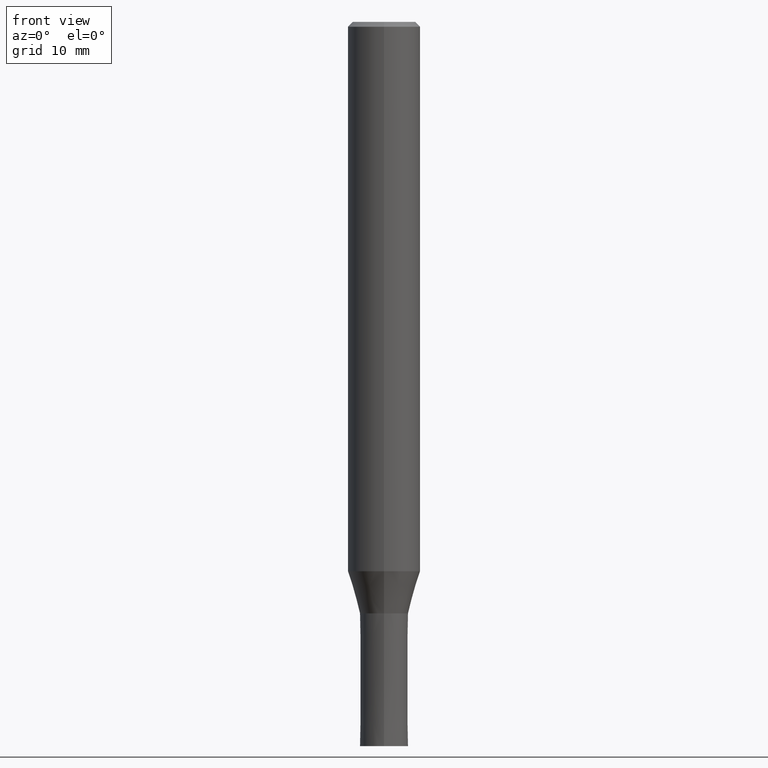
[diagram: clean part render]
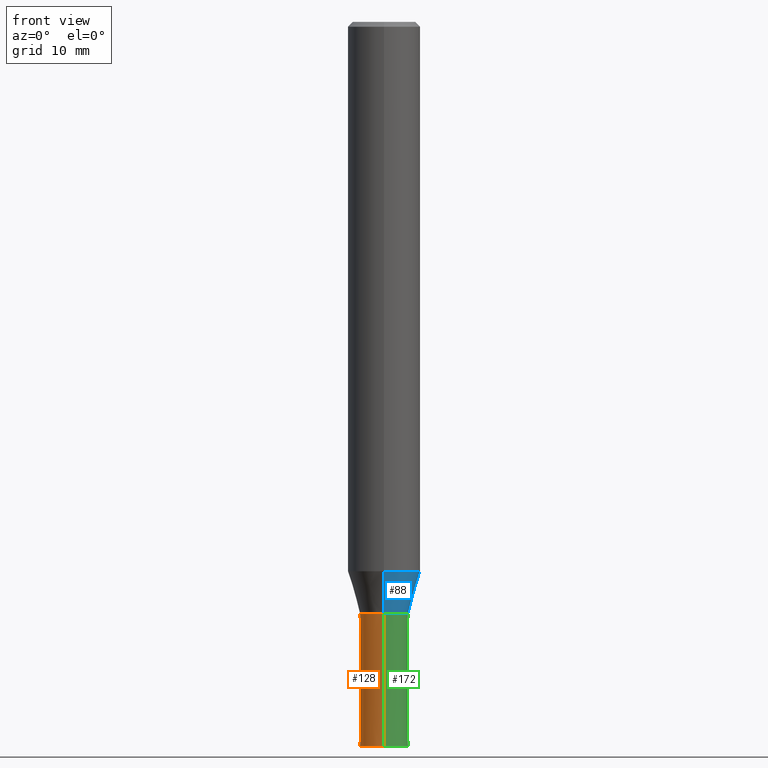
[diagram: same view with three faces highlighted in distinct colors, each labeled with its STEP entity id]
A machine part, front view with three faces highlighted in distinct colors.
Their STEP definitions:

[orange] entity #128 — the highlighted conical surface has half-angle 0.001 deg.
#84=EDGE_CURVE('',#160,#154,#205,.T.);
#86=EDGE_CURVE('',#154,#90,#207,.T.);
#90=VERTEX_POINT('',#212);
#92=VERTEX_POINT('',#214);
#118=EDGE_CURVE('',#92,#90,#246,.T.);
#128=ADVANCED_FACE('',(#256),#257,.T.);
#150=EDGE_CURVE('',#92,#160,#280,.T.);
#154=VERTEX_POINT('',#284);
#160=VERTEX_POINT('',#290);
#205=CIRCLE('',#333,1.9999);
#207=LINE('',#336,#337);
#212=CARTESIAN_POINT('',(0.0,2.0,-60.0));
#214=CARTESIAN_POINT('',(2.44921270764475E-016,-2.0,-60.0));
#246=CIRCLE('',#384,2.0);
#256=FACE_OUTER_BOUND('',#396,.T.);
#257=CONICAL_SURFACE('',#397,1.99995,9.09090909065765E-006);
#280=LINE('',#428,#429);
#284=CARTESIAN_POINT('',(0.0,1.9999,-49.0));
#290=CARTESIAN_POINT('',(2.44909024700937E-016,-1.9999,-49.0));
#333=AXIS2_PLACEMENT_3D('',#476,#477,#478);
#336=CARTESIAN_POINT('',(-2.44915147732706E-016,1.99995,-54.5));
#337=VECTOR('',#479,1.0);
#384=AXIS2_PLACEMENT_3D('',#538,#539,#540);
#396=EDGE_LOOP('',(#548,#549,#550,#551));
#397=AXIS2_PLACEMENT_3D('',#552,#553,#554);
#428=CARTESIAN_POINT('',(2.44915147732706E-016,-1.99995,-54.5));
#429=VECTOR('',#572,1.0);
#476=CARTESIAN_POINT('',(0.0,0.0,-49.0));
#477=DIRECTION('',(0.0,0.0,-1.0));
#478=DIRECTION('',(0.0,1.0,0.0));
#479=DIRECTION('',(-1.11327850342876E-021,9.09090909053243E-006,-0.999999999958678));
#538=CARTESIAN_POINT('',(0.0,0.0,-60.0));
#539=DIRECTION('',(0.0,0.0,-1.0));
#540=DIRECTION('',(0.0,1.0,0.0));
#548=ORIENTED_EDGE('',*,*,#86,.T.);
#549=ORIENTED_EDGE('',*,*,#118,.F.);
#550=ORIENTED_EDGE('',*,*,#150,.T.);
#551=ORIENTED_EDGE('',*,*,#84,.T.);
#552=CARTESIAN_POINT('',(0.0,0.0,-54.5));
#553=DIRECTION('',(0.0,-0.0,-1.0));
#554=DIRECTION('',(0.0,1.0,0.0));
#572=DIRECTION('',(-1.11327850342876E-021,9.09090909053243E-006,0.999999999958678));

[blue] entity #88 — the highlighted conical surface has half-angle 16.002 deg.
#88=ADVANCED_FACE('',(#209),#210,.T.);
#96=EDGE_CURVE('',#178,#134,#219,.T.);
#100=EDGE_CURVE('',#108,#124,#224,.T.);
#106=EDGE_CURVE('',#178,#124,#233,.T.);
#108=VERTEX_POINT('',#235);
#124=VERTEX_POINT('',#252);
#134=VERTEX_POINT('',#263);
#178=VERTEX_POINT('',#313);
#180=EDGE_CURVE('',#134,#108,#315,.T.);
#209=FACE_OUTER_BOUND('',#339,.T.);
#210=CONICAL_SURFACE('',#340,2.49995,0.279284171542493);
#219=LINE('',#350,#351);
#224=LINE('',#357,#358);
#233=CIRCLE('',#368,2.99995);
#235=CARTESIAN_POINT('',(2.44915147732706E-016,-1.99995,-49.0));
#252=CARTESIAN_POINT('',(3.67375783114944E-016,-2.99995,-45.513));
#263=CARTESIAN_POINT('',(0.0,1.99995,-49.0));
#313=CARTESIAN_POINT('',(0.0,2.99995,-45.513));
#315=CIRCLE('',#467,1.99995);
#339=EDGE_LOOP('',(#481,#482,#483,#484));
#340=AXIS2_PLACEMENT_3D('',#485,#486,#487);
#350=CARTESIAN_POINT('',(-3.06145465423825E-016,2.49995,-47.2565));
#351=VECTOR('',#496,1.0);
#357=CARTESIAN_POINT('',(3.06145465423825E-016,-2.49995,-47.2565));
#358=VECTOR('',#505,1.0);
#368=AXIS2_PLACEMENT_3D('',#522,#523,#524);
#467=AXIS2_PLACEMENT_3D('',#617,#618,#619);
#481=ORIENTED_EDGE('',*,*,#96,.F.);
#482=ORIENTED_EDGE('',*,*,#106,.T.);
#483=ORIENTED_EDGE('',*,*,#100,.F.);
#484=ORIENTED_EDGE('',*,*,#180,.F.);
#485=CARTESIAN_POINT('',(0.0,0.0,-47.2565));
#486=DIRECTION('',(-0.0,-0.0,1.0));
#487=DIRECTION('',(0.0,1.0,0.0));
#496=DIRECTION('',(3.3758432755158E-017,-0.275667626987133,-0.961253015304131));
#505=DIRECTION('',(3.3758432755158E-017,-0.275667626987133,0.961253015304131));
#522=CARTESIAN_POINT('',(0.0,0.0,-45.513));
#523=DIRECTION('',(0.0,0.0,-1.0));
#524=DIRECTION('',(0.0,1.0,0.0));
#617=CARTESIAN_POINT('',(0.0,0.0,-49.0));
#618=DIRECTION('',(0.0,0.0,-1.0));
#619=DIRECTION('',(0.0,1.0,0.0));

[green] entity #172 — the highlighted conical surface has half-angle 0.001 deg.
#86=EDGE_CURVE('',#154,#90,#207,.T.);
#90=VERTEX_POINT('',#212);
#92=VERTEX_POINT('',#214);
#112=EDGE_CURVE('',#154,#160,#239,.T.);
#150=EDGE_CURVE('',#92,#160,#280,.T.);
#154=VERTEX_POINT('',#284);
#156=EDGE_CURVE('',#90,#92,#286,.T.);
#160=VERTEX_POINT('',#290);
#172=ADVANCED_FACE('',(#304),#305,.T.);
#207=LINE('',#336,#337);
#212=CARTESIAN_POINT('',(0.0,2.0,-60.0));
#214=CARTESIAN_POINT('',(2.44921270764475E-016,-2.0,-60.0));
#239=CIRCLE('',#374,1.9999);
#280=LINE('',#428,#429);
#284=CARTESIAN_POINT('',(0.0,1.9999,-49.0));
#286=CIRCLE('',#436,2.0);
#290=CARTESIAN_POINT('',(2.44909024700937E-016,-1.9999,-49.0));
#304=FACE_OUTER_BOUND('',#455,.T.);
#305=CONICAL_SURFACE('',#456,1.99995,9.09090909065765E-006);
#336=CARTESIAN_POINT('',(-2.44915147732706E-016,1.99995,-54.5));
#337=VECTOR('',#479,1.0);
#374=AXIS2_PLACEMENT_3D('',#526,#527,#528);
#428=CARTESIAN_POINT('',(2.44915147732706E-016,-1.99995,-54.5));
#429=VECTOR('',#572,1.0);
#436=AXIS2_PLACEMENT_3D('',#573,#574,#575);
#455=EDGE_LOOP('',(#596,#597,#598,#599));
#456=AXIS2_PLACEMENT_3D('',#600,#601,#602);
#479=DIRECTION('',(-1.11327850342876E-021,9.09090909053243E-006,-0.999999999958678));
#526=CARTESIAN_POINT('',(0.0,0.0,-49.0));
#527=DIRECTION('',(0.0,0.0,-1.0));
#528=DIRECTION('',(0.0,1.0,0.0));
#572=DIRECTION('',(-1.11327850342876E-021,9.09090909053243E-006,0.999999999958678));
#573=CARTESIAN_POINT('',(0.0,0.0,-60.0));
#574=DIRECTION('',(0.0,0.0,-1.0));
#575=DIRECTION('',(0.0,1.0,0.0));
#596=ORIENTED_EDGE('',*,*,#86,.F.);
#597=ORIENTED_EDGE('',*,*,#112,.T.);
#598=ORIENTED_EDGE('',*,*,#150,.F.);
#599=ORIENTED_EDGE('',*,*,#156,.F.);
#600=CARTESIAN_POINT('',(0.0,0.0,-54.5));
#601=DIRECTION('',(0.0,-0.0,-1.0));
#602=DIRECTION('',(0.0,1.0,0.0));